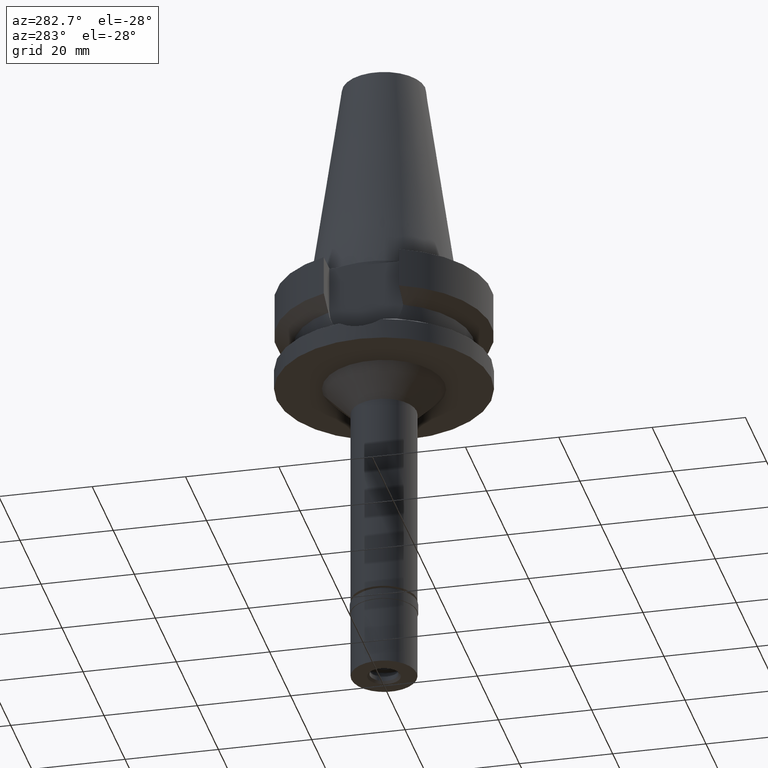
[diagram: clean part render]
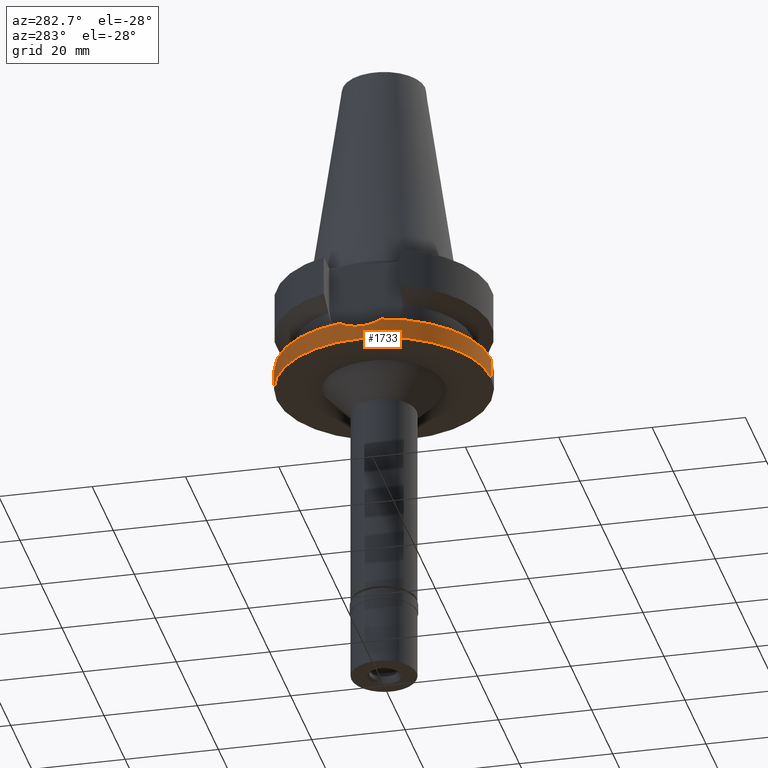
[diagram: same view with one face highlighted and labeled with its STEP entity id]
A machine part, auxiliary view. The second image highlights one B-rep face of the part: STEP entity #1733.
In plain terms, the highlighted cylindrical surface (partial cylindrical patch) has radius 23.0018 mm, axis along (0, 0, -1).
Its self-contained STEP definition (entity closure, byte-faithful):
#24 = CARTESIAN_POINT ( 'NONE',  ( -22.88691246850320482, -2.297151305620180217, -18.66532444237895305 ) ) ;
#37 = AXIS2_PLACEMENT_3D ( 'NONE', #2029, #1778, #241 ) ;
#175 = CARTESIAN_POINT ( 'NONE',  ( -22.77876187090901183, 3.197807152280764509, -18.34032032442050664 ) ) ;
#241 = DIRECTION ( 'NONE',  ( 0.0000000000000000000, -1.000000000000000000, 0.0000000000000000000 ) ) ;
#259 = CARTESIAN_POINT ( 'NONE',  ( 0.0000000000000000000, 23.00179173279000011, -17.63279163029000074 ) ) ;
#314 = EDGE_LOOP ( 'NONE', ( #2798, #2828, #680, #2652, #2489, #1879 ) ) ;
#323 = CARTESIAN_POINT ( 'NONE',  ( 0.0000000000000000000, -23.00179173279000011, -22.00000000000000000 ) ) ;
#371 = DIRECTION ( 'NONE',  ( 0.0000000000000000000, -2.440492903962000069E-14, -1.000000000000000000 ) ) ;
#400 = DIRECTION ( 'NONE',  ( 0.0000000000000000000, 0.0000000000000000000, -1.000000000000000000 ) ) ;
#439 = EDGE_CURVE ( 'NONE', #818, #2124, #1266, .T. ) ;
#544 = CIRCLE ( 'NONE', #37, 23.00179173279000011 ) ;
#613 = AXIS2_PLACEMENT_3D ( 'NONE', #2685, #1564, #2485 ) ;
#664 = CARTESIAN_POINT ( 'NONE',  ( -22.94895911945306821, -1.569021787533816603, -18.84812755709506149 ) ) ;
#680 = ORIENTED_EDGE ( 'NONE', *, *, #2672, .T. ) ;
#699 = CARTESIAN_POINT ( 'NONE',  ( -22.70549665653165405, -3.755164267108145992, -18.12500299949416416 ) ) ;
#732 = EDGE_CURVE ( 'NONE', #818, #955, #997, .T. ) ;
#747 = CARTESIAN_POINT ( 'NONE',  ( -22.55969031021000148, 4.488072640469000341, -17.63279163029000074 ) ) ;
#787 = VERTEX_POINT ( 'NONE', #788 ) ;
#788 = CARTESIAN_POINT ( 'NONE',  ( 0.0000000000000000000, 23.00179173279000011, -22.00000000000000000 ) ) ;
#818 = VERTEX_POINT ( 'NONE', #747 ) ;
#819 = CARTESIAN_POINT ( 'NONE',  ( -22.85239275580987695, 2.619937523646971300, -18.56269550318771877 ) ) ;
#822 = LINE ( 'NONE', #2386, #2237 ) ;
#844 = AXIS2_PLACEMENT_3D ( 'NONE', #2419, #400, #1521 ) ;
#894 = CARTESIAN_POINT ( 'NONE',  ( -22.89879591878534626, -2.176205080255289470, -18.70055268273487670 ) ) ;
#955 = VERTEX_POINT ( 'NONE', #1391 ) ;
#994 = VERTEX_POINT ( 'NONE', #1146 ) ;
#997 = B_SPLINE_CURVE_WITH_KNOTS ( 'NONE', 3,
 ( #1064, #1080, #2163, #175, #2822, #2837, #819, #2623, #1500, #1700, #2605, #2416, #1554, #2717, #1594, #1765, #2048, #1350, #664, #2700, #1106, #894, #1541, #24, #1797, #2490, #699, #2275 ),
 .UNSPECIFIED., .F., .F.,
 ( 4, 2, 2, 1, 1, 2, 2, 2, 2, 2, 2, 1, 1, 2, 2, 4 ),
 ( 0.0000000000000000000, 0.1250000000000003608, 0.1875000000000003053, 0.2187500000000003053, 0.2343750000000002776, 0.2421875000000003331, 0.2500000000000003886, 0.3750000000000003331, 0.5000000000000003331, 0.6250000000000002220, 0.6875000000000002220, 0.7187500000000001110, 0.7343750000000001110, 0.7421875000000003331, 0.7500000000000005551, 1.000000000000000000 ),
 .UNSPECIFIED. ) ;
#1064 = CARTESIAN_POINT ( 'NONE',  ( -22.55969031021000148, 4.488072640469000341, -17.63279163029000074 ) ) ;
#1080 = CARTESIAN_POINT ( 'NONE',  ( -22.63349702596114099, 4.117076717823635157, -17.88194748345220120 ) ) ;
#1099 = CARTESIAN_POINT ( 'NONE',  ( 0.0000000000000000000, -23.00179173279000011, -17.63279163029000074 ) ) ;
#1106 = CARTESIAN_POINT ( 'NONE',  ( -22.91451886367131152, -2.006575868976689492, -18.74703727794431884 ) ) ;
#1146 = CARTESIAN_POINT ( 'NONE',  ( 0.0000000000000000000, -23.00179173279000011, -17.63279163029000074 ) ) ;
#1212 = CIRCLE ( 'NONE', #613, 23.00179173279000011 ) ;
#1266 = CIRCLE ( 'NONE', #844, 23.00179173279000366 ) ;
#1338 = DIRECTION ( 'NONE',  ( 0.0000000000000000000, 0.0000000000000000000, -1.000000000000000000 ) ) ;
#1350 = CARTESIAN_POINT ( 'NONE',  ( -22.96139880800737387, -1.374148370437481059, -18.88428830911116663 ) ) ;
#1362 = VECTOR ( 'NONE', #2016, 1000.000000000000000 ) ;
#1391 = CARTESIAN_POINT ( 'NONE',  ( -22.55969031021000148, -4.488072640469000341, -17.63279163029000074 ) ) ;
#1500 = CARTESIAN_POINT ( 'NONE',  ( -22.87594441871170758, 2.403890158641970309, -18.63272838921258057 ) ) ;
#1521 = DIRECTION ( 'NONE',  ( -0.9807796963072338281, 0.1951183930630069618, 0.0000000000000000000 ) ) ;
#1541 = CARTESIAN_POINT ( 'NONE',  ( -22.89171192687702927, -2.248789465468894022, -18.67955893386412214 ) ) ;
#1554 = CARTESIAN_POINT ( 'NONE',  ( -22.95353798307994708, 1.537726694965947161, -18.86162712819263376 ) ) ;
#1564 = DIRECTION ( 'NONE',  ( 0.0000000000000000000, 0.0000000000000000000, 1.000000000000000000 ) ) ;
#1594 = CARTESIAN_POINT ( 'NONE',  ( -23.00208829470935612, 0.3642187397825778494, -19.00087563329320872 ) ) ;
#1666 = EDGE_CURVE ( 'NONE', #994, #955, #544, .T. ) ;
#1694 = EDGE_CURVE ( 'NONE', #994, #1838, #2643, .T. ) ;
#1700 = CARTESIAN_POINT ( 'NONE',  ( -22.88041709303478299, 2.361027391203026404, -18.64600890430991953 ) ) ;
#1733 = ADVANCED_FACE ( 'NONE', ( #1739 ), #2463, .T. ) ;
#1739 = FACE_OUTER_BOUND ( 'NONE', #314, .T. ) ;
#1765 = CARTESIAN_POINT ( 'NONE',  ( -23.00147968551750921, -0.4019482060731227047, -18.99908015817943152 ) ) ;
#1778 = DIRECTION ( 'NONE',  ( 0.0000000000000000000, 0.0000000000000000000, -1.000000000000000000 ) ) ;
#1797 = CARTESIAN_POINT ( 'NONE',  ( -22.88428302349925403, -2.323174946070571512, -18.65751865391159114 ) ) ;
#1838 = VERTEX_POINT ( 'NONE', #323 ) ;
#1879 = ORIENTED_EDGE ( 'NONE', *, *, #732, .F. ) ;
#1983 = EDGE_CURVE ( 'NONE', #2124, #787, #822, .T. ) ;
#2016 = DIRECTION ( 'NONE',  ( 0.0000000000000000000, 2.359143140496999862E-14, -1.000000000000000000 ) ) ;
#2022 = DIRECTION ( 'NONE',  ( 0.0000000000000000000, -1.000000000000000000, 0.0000000000000000000 ) ) ;
#2029 = CARTESIAN_POINT ( 'NONE',  ( 0.0000000000000000000, 1.022848384030000006E-14, -17.63279163029000074 ) ) ;
#2035 = AXIS2_PLACEMENT_3D ( 'NONE', #2686, #1338, #2022 ) ;
#2048 = CARTESIAN_POINT ( 'NONE',  ( -22.99134535191648965, -0.7902374729131969033, -18.97077824158604997 ) ) ;
#2124 = VERTEX_POINT ( 'NONE', #259 ) ;
#2163 = CARTESIAN_POINT ( 'NONE',  ( -22.69749075560478602, 3.744428308985928489, -18.08743490070125048 ) ) ;
#2237 = VECTOR ( 'NONE', #371, 1000.000000000000000 ) ;
#2275 = CARTESIAN_POINT ( 'NONE',  ( -22.55969031021000148, -4.488072640469000341, -17.63279163029000074 ) ) ;
#2386 = CARTESIAN_POINT ( 'NONE',  ( 0.0000000000000000000, 23.00179173279000011, -17.63279163029000074 ) ) ;
#2416 = CARTESIAN_POINT ( 'NONE',  ( -22.92416157534498566, 1.929444050632325602, -18.77583388469185621 ) ) ;
#2419 = CARTESIAN_POINT ( 'NONE',  ( 0.0000000000000000000, 1.022848384030000006E-14, -17.63279163029000074 ) ) ;
#2463 = CYLINDRICAL_SURFACE ( 'NONE', #2035, 23.00179173279000011 ) ;
#2485 = DIRECTION ( 'NONE',  ( 0.0000000000000000000, 1.000000000000000000, 0.0000000000000000000 ) ) ;
#2489 = ORIENTED_EDGE ( 'NONE', *, *, #1666, .T. ) ;
#2490 = CARTESIAN_POINT ( 'NONE',  ( -22.81297393379264804, -3.018877893465228723, -18.44574291449669445 ) ) ;
#2605 = CARTESIAN_POINT ( 'NONE',  ( -22.88243651354250829, 2.341424885127310063, -18.65200427552328577 ) ) ;
#2623 = CARTESIAN_POINT ( 'NONE',  ( -22.86912041129614792, 2.468354970188485709, -18.61246013723418002 ) ) ;
#2643 = LINE ( 'NONE', #1099, #1362 ) ;
#2652 = ORIENTED_EDGE ( 'NONE', *, *, #1694, .F. ) ;
#2672 = EDGE_CURVE ( 'NONE', #787, #1838, #1212, .T. ) ;
#2685 = CARTESIAN_POINT ( 'NONE',  ( 0.0000000000000000000, 1.899672114836999856E-14, -22.00000000000000000 ) ) ;
#2686 = CARTESIAN_POINT ( 'NONE',  ( 0.0000000000000000000, 1.899672114836999856E-14, 55.12000000000000455 ) ) ;
#2700 = CARTESIAN_POINT ( 'NONE',  ( -22.92661332574471444, -1.860811757635261632, -18.78261237851851817 ) ) ;
#2717 = CARTESIAN_POINT ( 'NONE',  ( -22.99250232121507054, 0.7559799306184038503, -18.97414740321155691 ) ) ;
#2798 = ORIENTED_EDGE ( 'NONE', *, *, #439, .T. ) ;
#2822 = CARTESIAN_POINT ( 'NONE',  ( -22.80339899615021437, 3.017609335975976581, -18.41541445381143660 ) ) ;
#2828 = ORIENTED_EDGE ( 'NONE', *, *, #1983, .T. ) ;
#2837 = CARTESIAN_POINT ( 'NONE',  ( -22.83667481422170908, 2.751756902361195856, -18.51566611199861256 ) ) ;